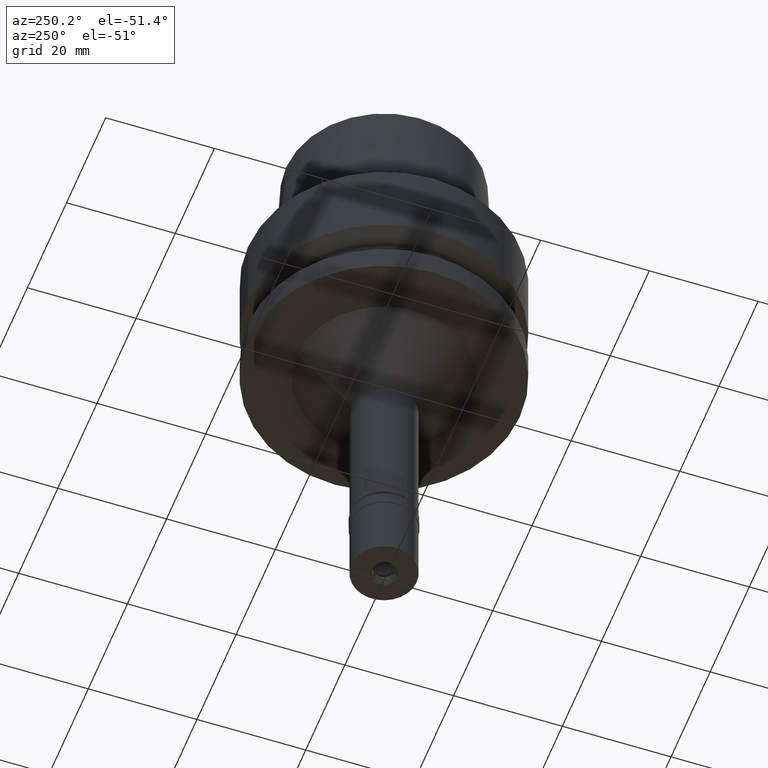
[diagram: clean part render]
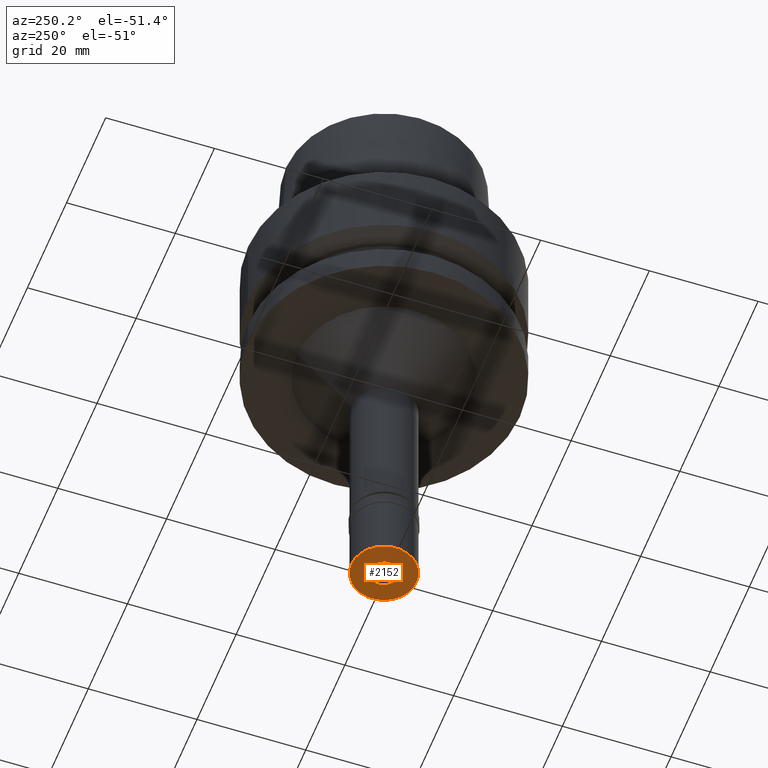
[diagram: same view with one face highlighted and labeled with its STEP entity id]
A machine part, auxiliary view. The second image highlights one B-rep face of the part: STEP entity #2152.
In plain terms, the highlighted planar face has unit normal (0, 0, 1).
Its self-contained STEP definition (entity closure, byte-faithful):
#27 = EDGE_LOOP ( 'NONE', ( #2422, #781 ) ) ;
#44 = AXIS2_PLACEMENT_3D ( 'NONE', #210, #1092, #1910 ) ;
#135 = CIRCLE ( 'NONE', #2457, 6.000000000000000000 ) ;
#147 = DIRECTION ( 'NONE',  ( 0.0000000000000000000, -1.000000000000000000, 0.0000000000000000000 ) ) ;
#166 = CARTESIAN_POINT ( 'NONE',  ( 0.0000000000000000000, 0.0000000000000000000, -14.50000000000000000 ) ) ;
#176 = CARTESIAN_POINT ( 'NONE',  ( 0.0000000000000000000, 6.000000000000000000, -14.50000000000000000 ) ) ;
#210 = CARTESIAN_POINT ( 'NONE',  ( 0.0000000000000000000, 0.0000000000000000000, -14.50000000000000000 ) ) ;
#289 = VERTEX_POINT ( 'NONE', #2246 ) ;
#372 = DIRECTION ( 'NONE',  ( 0.0000000000000000000, 0.0000000000000000000, 1.000000000000000000 ) ) ;
#409 = EDGE_CURVE ( 'NONE', #2532, #1184, #1362, .T. ) ;
#445 = CIRCLE ( 'NONE', #1413, 2.550000000000000266 ) ;
#496 = CARTESIAN_POINT ( 'NONE',  ( 0.0000000000000000000, -2.550000000000000266, -14.50000000000000000 ) ) ;
#571 = CARTESIAN_POINT ( 'NONE',  ( 0.0000000000000000000, 2.550000000000000266, -14.50000000000000000 ) ) ;
#641 = DIRECTION ( 'NONE',  ( 0.0000000000000000000, 1.000000000000000000, 0.0000000000000000000 ) ) ;
#714 = DIRECTION ( 'NONE',  ( 0.0000000000000000000, 0.0000000000000000000, -1.000000000000000000 ) ) ;
#762 = CARTESIAN_POINT ( 'NONE',  ( 0.0000000000000000000, 0.0000000000000000000, -14.50000000000000000 ) ) ;
#781 = ORIENTED_EDGE ( 'NONE', *, *, #409, .F. ) ;
#998 = FACE_OUTER_BOUND ( 'NONE', #2594, .T. ) ;
#1092 = DIRECTION ( 'NONE',  ( 0.0000000000000000000, 0.0000000000000000000, -1.000000000000000000 ) ) ;
#1184 = VERTEX_POINT ( 'NONE', #571 ) ;
#1207 = EDGE_CURVE ( 'NONE', #2178, #289, #1452, .T. ) ;
#1362 = CIRCLE ( 'NONE', #44, 2.550000000000000266 ) ;
#1413 = AXIS2_PLACEMENT_3D ( 'NONE', #1966, #714, #1611 ) ;
#1452 = CIRCLE ( 'NONE', #1846, 6.000000000000000000 ) ;
#1501 = AXIS2_PLACEMENT_3D ( 'NONE', #1619, #372, #1605 ) ;
#1605 = DIRECTION ( 'NONE',  ( 1.000000000000000000, 0.0000000000000000000, 0.0000000000000000000 ) ) ;
#1611 = DIRECTION ( 'NONE',  ( 0.0000000000000000000, 1.000000000000000000, 0.0000000000000000000 ) ) ;
#1619 = CARTESIAN_POINT ( 'NONE',  ( 0.0000000000000000000, 0.0000000000000000000, -14.50000000000000000 ) ) ;
#1652 = PLANE ( 'NONE',  #1501 ) ;
#1694 = DIRECTION ( 'NONE',  ( 0.0000000000000000000, 0.0000000000000000000, 1.000000000000000000 ) ) ;
#1846 = AXIS2_PLACEMENT_3D ( 'NONE', #166, #1694, #641 ) ;
#1910 = DIRECTION ( 'NONE',  ( 0.0000000000000000000, -1.000000000000000000, 0.0000000000000000000 ) ) ;
#1966 = CARTESIAN_POINT ( 'NONE',  ( 0.0000000000000000000, 0.0000000000000000000, -14.50000000000000000 ) ) ;
#2025 = DIRECTION ( 'NONE',  ( 0.0000000000000000000, 0.0000000000000000000, 1.000000000000000000 ) ) ;
#2048 = EDGE_CURVE ( 'NONE', #289, #2178, #135, .T. ) ;
#2152 = ADVANCED_FACE ( 'NONE', ( #998, #2297 ), #1652, .F. ) ;
#2178 = VERTEX_POINT ( 'NONE', #176 ) ;
#2246 = CARTESIAN_POINT ( 'NONE',  ( 0.0000000000000000000, -6.000000000000000000, -14.50000000000000000 ) ) ;
#2297 = FACE_BOUND ( 'NONE', #27, .T. ) ;
#2422 = ORIENTED_EDGE ( 'NONE', *, *, #2547, .F. ) ;
#2457 = AXIS2_PLACEMENT_3D ( 'NONE', #762, #2025, #147 ) ;
#2517 = ORIENTED_EDGE ( 'NONE', *, *, #1207, .F. ) ;
#2532 = VERTEX_POINT ( 'NONE', #496 ) ;
#2547 = EDGE_CURVE ( 'NONE', #1184, #2532, #445, .T. ) ;
#2594 = EDGE_LOOP ( 'NONE', ( #2517, #2675 ) ) ;
#2675 = ORIENTED_EDGE ( 'NONE', *, *, #2048, .F. ) ;